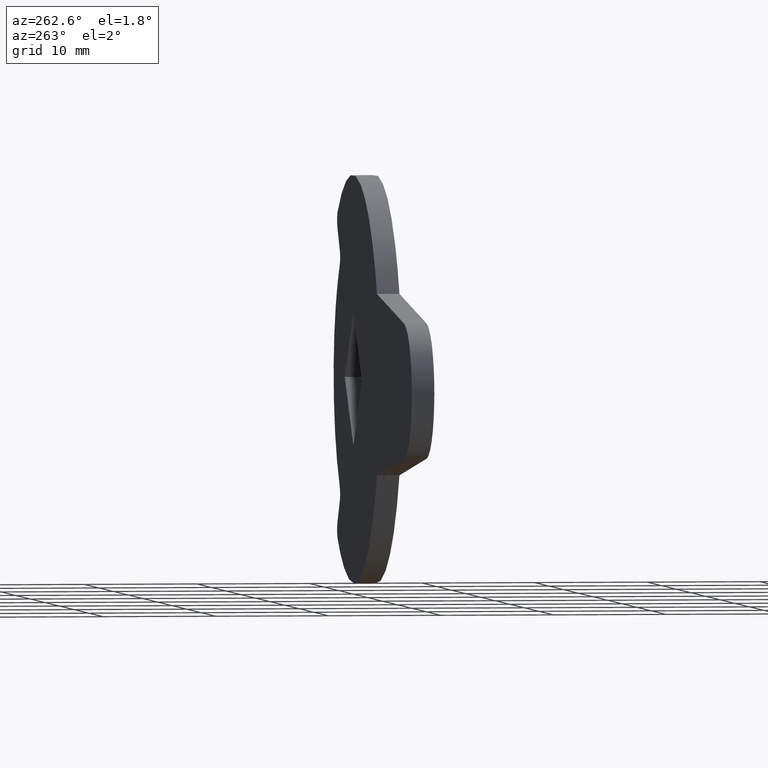
[diagram: clean part render]
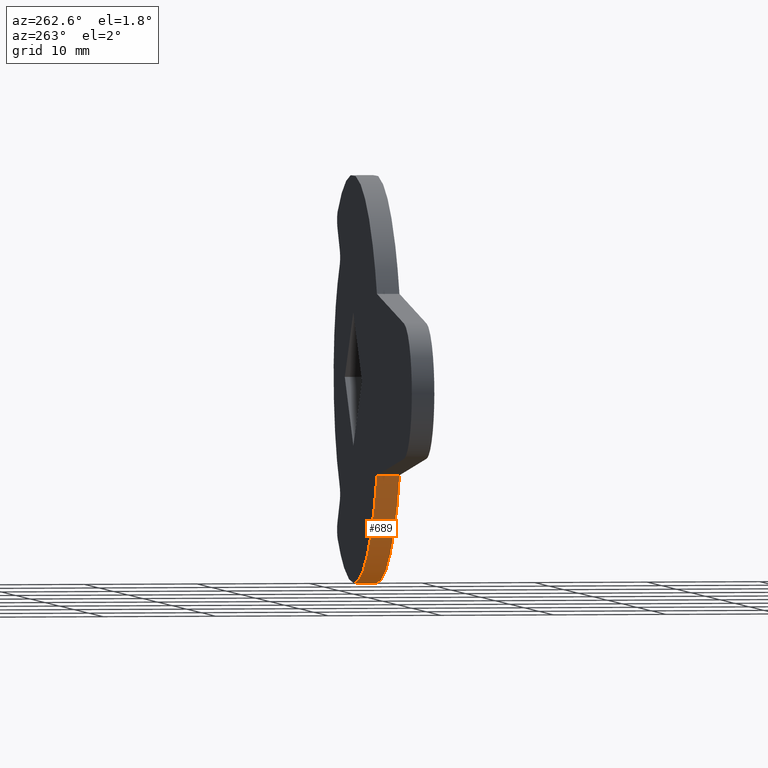
[diagram: same view with one face highlighted and labeled with its STEP entity id]
A machine part, auxiliary view. The second image highlights one B-rep face of the part: STEP entity #689.
In plain terms, the highlighted face is a freeform B-spline surface patch.
Its self-contained STEP definition (entity closure, byte-faithful):
#146=CARTESIAN_POINT('',(10.739112776660720,0.0,-14.445497084531439));
#147=VERTEX_POINT('',#146);
#163=CARTESIAN_POINT('',(-16.124516390019249,0.0,-7.999998199249870));
#164=VERTEX_POINT('',#163);
#165=CARTESIAN_POINT('',(-16.124516390019220,0.0,-7.999998199249855));
#166=CARTESIAN_POINT('',(-12.383854566696790,0.0,-15.539582422374766));
#167=CARTESIAN_POINT('',(-4.199610718877521,0.0,-17.503261055320671));
#168=CARTESIAN_POINT('',(3.984633128941750,0.0,-19.466939688266574));
#169=CARTESIAN_POINT('',(10.739112776660701,0.0,-14.445497084531430));
#177=(BOUNDED_CURVE()B_SPLINE_CURVE(2,(#165,#166,#167,#168,#169),.UNSPECIFIED.,.F.,.U.)B_SPLINE_CURVE_WITH_KNOTS((3,2,3),(0.0,0.500000000000000,1.0),.UNSPECIFIED.)CURVE()GEOMETRIC_REPRESENTATION_ITEM()RATIONAL_B_SPLINE_CURVE((1.0,0.905864136016763,1.0,0.905864136016763,1.0))REPRESENTATION_ITEM(''));
#178=EDGE_CURVE('',#164,#147,#177,.T.);
#290=CARTESIAN_POINT('',(-16.124516390019249,-2.0,-7.999998199249870));
#291=VERTEX_POINT('',#290);
#297=CARTESIAN_POINT('',(10.739112776660720,-2.0,-14.445497084531439));
#298=VERTEX_POINT('',#297);
#299=CARTESIAN_POINT('',(-16.124516390019220,-2.0,-7.999998199249855));
#300=CARTESIAN_POINT('',(-12.383854566696790,-2.000000000000000,-15.539582422374766));
#301=CARTESIAN_POINT('',(-4.199610718877521,-2.0,-17.503261055320671));
#302=CARTESIAN_POINT('',(3.984633128941750,-2.000000000000000,-19.466939688266574));
#303=CARTESIAN_POINT('',(10.739112776660701,-2.0,-14.445497084531430));
#311=(BOUNDED_CURVE()B_SPLINE_CURVE(2,(#299,#300,#301,#302,#303),.UNSPECIFIED.,.F.,.U.)B_SPLINE_CURVE_WITH_KNOTS((3,2,3),(0.0,0.500000000000000,1.0),.UNSPECIFIED.)CURVE()GEOMETRIC_REPRESENTATION_ITEM()RATIONAL_B_SPLINE_CURVE((1.0,0.905864136016763,1.0,0.905864136016763,1.0))REPRESENTATION_ITEM(''));
#312=EDGE_CURVE('',#291,#298,#311,.T.);
#657=CARTESIAN_POINT('',(10.739112776660720,-2.0,-14.445497084531439));
#658=CARTESIAN_POINT('',(10.739112776660720,0.0,-14.445497084531439));
#659=QUASI_UNIFORM_CURVE('',1,(#657,#658),.UNSPECIFIED.,.F.,.U.);
#660=EDGE_CURVE('',#298,#147,#659,.T.);
#665=CARTESIAN_POINT('',(-16.328405540430492,-2.050000000000000,-7.575165946870190));
#666=CARTESIAN_POINT('',(-16.328405540430492,0.051250000000000,-7.575165946870190));
#667=CARTESIAN_POINT('',(-6.456302718998036,-2.050000000000000,-28.854769933807130));
#668=CARTESIAN_POINT('',(-6.456302718998036,0.051250000000000,-28.854769933807130));
#669=CARTESIAN_POINT('',(11.543128119791129,-2.050000000000000,-13.811484074745531));
#670=CARTESIAN_POINT('',(11.543128119791129,0.051250000000000,-13.811484074745531));
#678=(BOUNDED_SURFACE()B_SPLINE_SURFACE(1,2,((#665,#667,#669),(#666,#668,#670)),.UNSPECIFIED.,.F.,.F.,.U.)B_SPLINE_SURFACE_WITH_KNOTS((2,2),(3,3),(0.0,2.101250000000000),(0.0,35.506455681852401),.UNSPECIFIED.)GEOMETRIC_REPRESENTATION_ITEM()RATIONAL_B_SPLINE_SURFACE(((1.0,0.608761429008720,1.0),(1.0,0.608761429008720,1.0)))REPRESENTATION_ITEM('')SURFACE());
#679=ORIENTED_EDGE('',*,*,#178,.T.);
#680=ORIENTED_EDGE('',*,*,#660,.F.);
#681=ORIENTED_EDGE('',*,*,#312,.F.);
#682=CARTESIAN_POINT('',(-16.124516390019249,-2.0,-7.999998199249870));
#683=CARTESIAN_POINT('',(-16.124516390019249,0.0,-7.999998199249870));
#684=QUASI_UNIFORM_CURVE('',1,(#682,#683),.UNSPECIFIED.,.F.,.U.);
#685=EDGE_CURVE('',#291,#164,#684,.T.);
#686=ORIENTED_EDGE('',*,*,#685,.T.);
#687=EDGE_LOOP('',(#679,#680,#681,#686));
#688=FACE_OUTER_BOUND('',#687,.T.);
#689=ADVANCED_FACE('',(#688),#678,.T.);